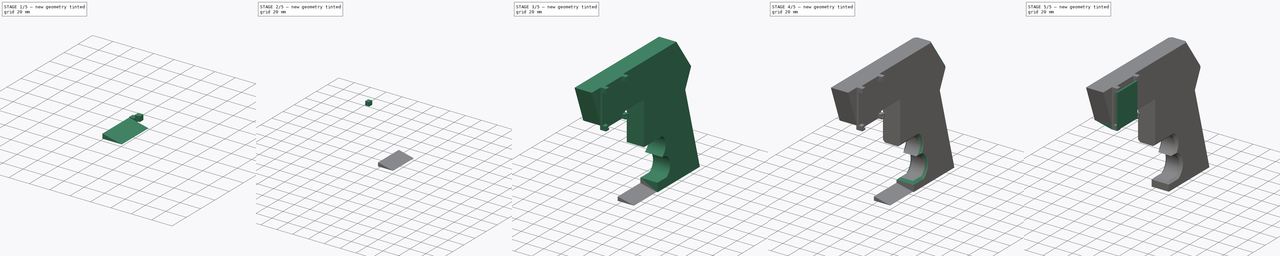
[diagram: build sequence overview — one tinted view per stage of 5, left to right]
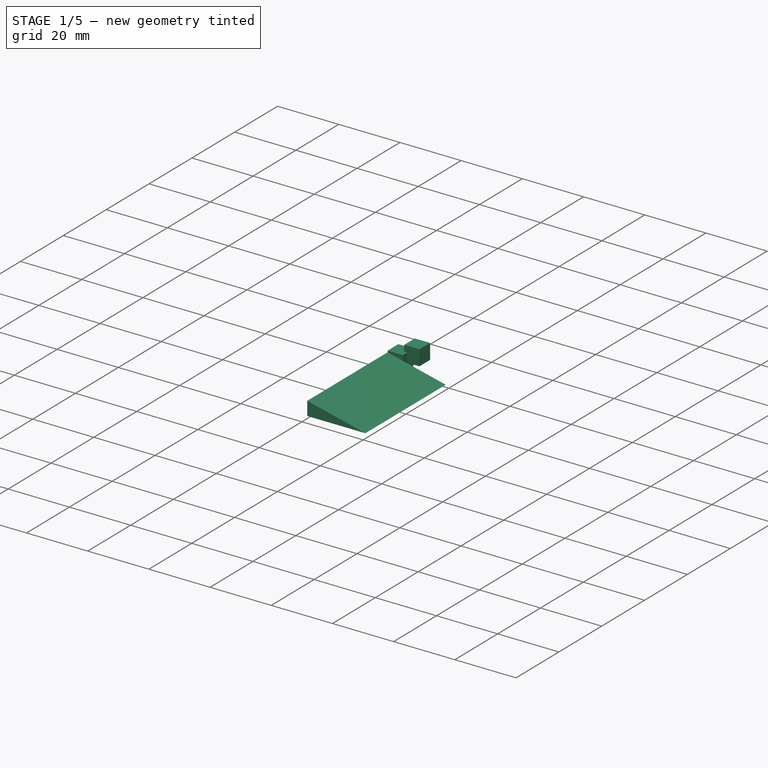
[diagram: stage 1 of 5 — iso view after this stage's code; geometry added in this stage tinted green]
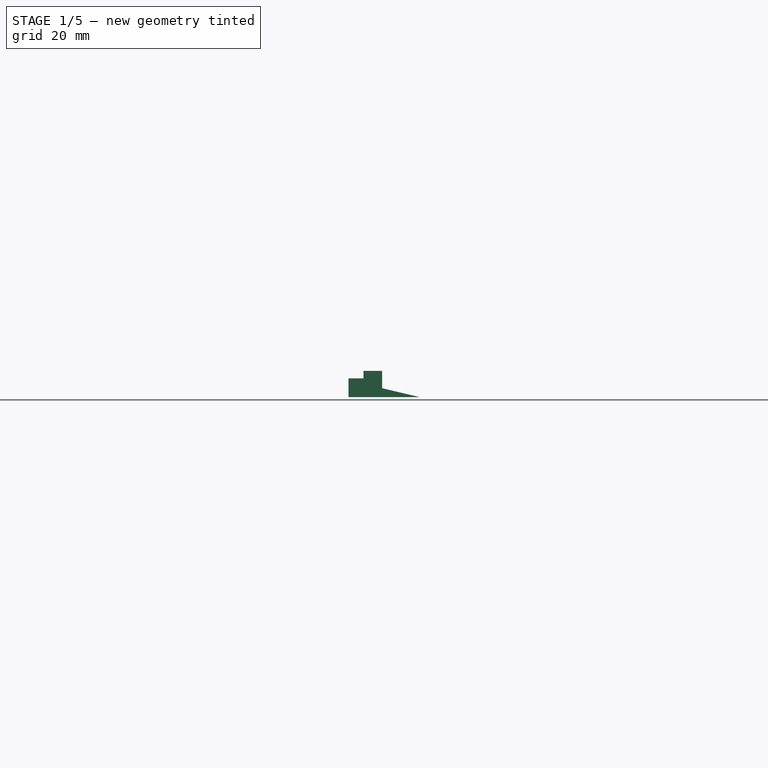
[diagram: stage 1 of 5 — front view after this stage's code; geometry added in this stage tinted green]
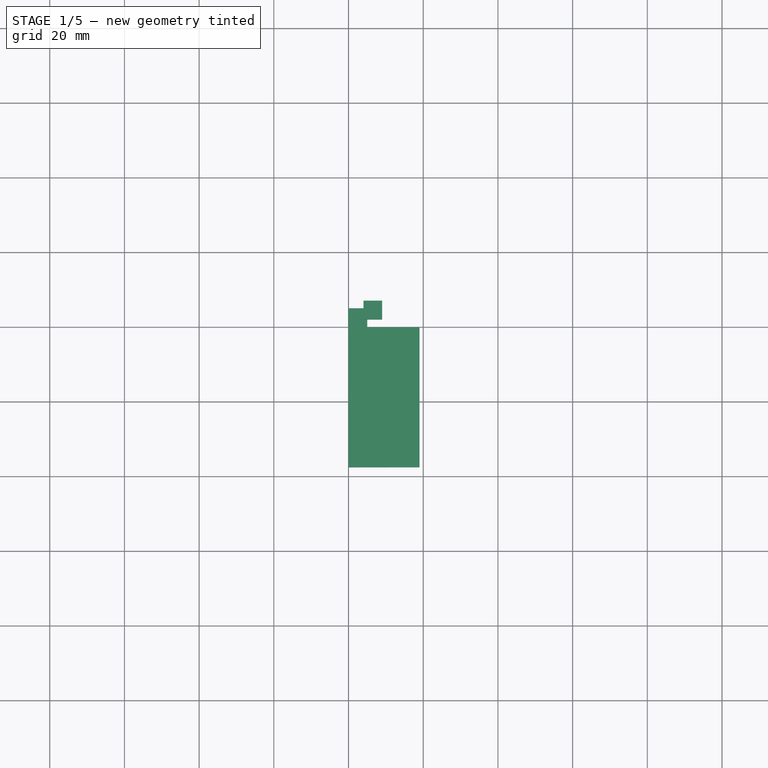
[diagram: stage 1 of 5 — top view after this stage's code; geometry added in this stage tinted green]
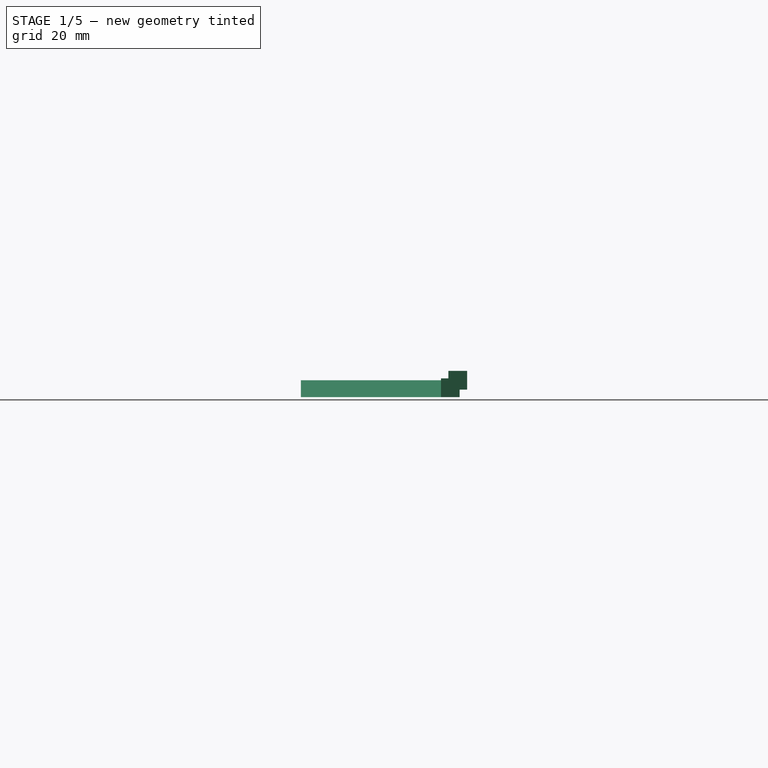
[diagram: stage 1 of 5 — right view after this stage's code; geometry added in this stage tinted green]
FCSTD DOCUMENT  (FreeCAD 0.18.1R)
Label: handle
License: All rights reserved
LicenseURL: http://en.wikipedia.org/wiki/All_rights_reserved
objects: PartDesign::Body×5, Part::Chamfer×4, Part::Box×4, PartDesign::FeatureBase×3, Part::MultiFuse×3, Sketcher::SketchObject×2, PartDesign::Pad×2, Part::Cut×1
note: 26 computed .brp shape members not serialized (recipe doc carries the construction recipe); baked Part::Feature solids carry a one-line shape summary decoded from their .brp

FEATURE [Part::Box] Box002  label="Cube002"
  AttacherType = Attacher::AttachEngine3D
  Height = 5
  Length = 5
  Width = 5
FEATURE [Part::Box] Box003  label="Cube003"
  AttacherType = Attacher::AttachEngine3D
  Height = 5
  Length = 5
  Placement = pos=(4,2,2) rot=(0,0,1;0rad)
  Width = 5
FEATURE [Sketcher::SketchObject] Sketch001
  MapMode = 5
  Placement = pos=(0,0,0) rot=(1,0,0;1.5708rad)
  Support = -> [XZ_Plane004]
  sketch-geometry (3):
    g0: LineSegment StartX=0 StartY=0 StartZ=0 EndX=19 EndY=0 EndZ=0
    g1: LineSegment StartX=0 StartY=0 StartZ=0 EndX=0 EndY=4.5 EndZ=0
    g2: LineSegment StartX=0 StartY=4.5 StartZ=0 EndX=19 EndY=0 EndZ=0
  constraints (8):
    c: Coincident(g0,g1)
    c: Coincident(g1,g2)
    c: Coincident(g2,g0)
    c: Horizontal(g0)
    c: Vertical(g1)
    c: Coincident(g0,g-1)
    c: DistanceX(g0,g0) = 19
    c: DistanceY(g1,g1) = 4.5
FEATURE [PartDesign::Pad] Pad001
  Length = 37.5
  Length2 = 100
  Placement = pos=(0,0,0) rot=(1,0,0;1.5708rad)
  Profile = -> Sketch001
  Type = 0
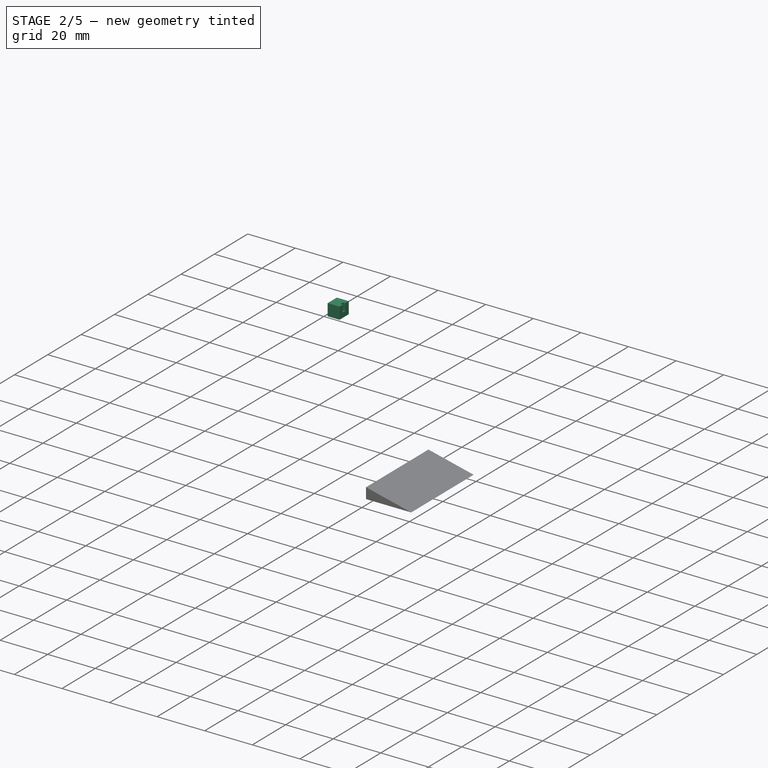
[diagram: stage 2 of 5 — iso view after this stage's code; geometry added in this stage tinted green]
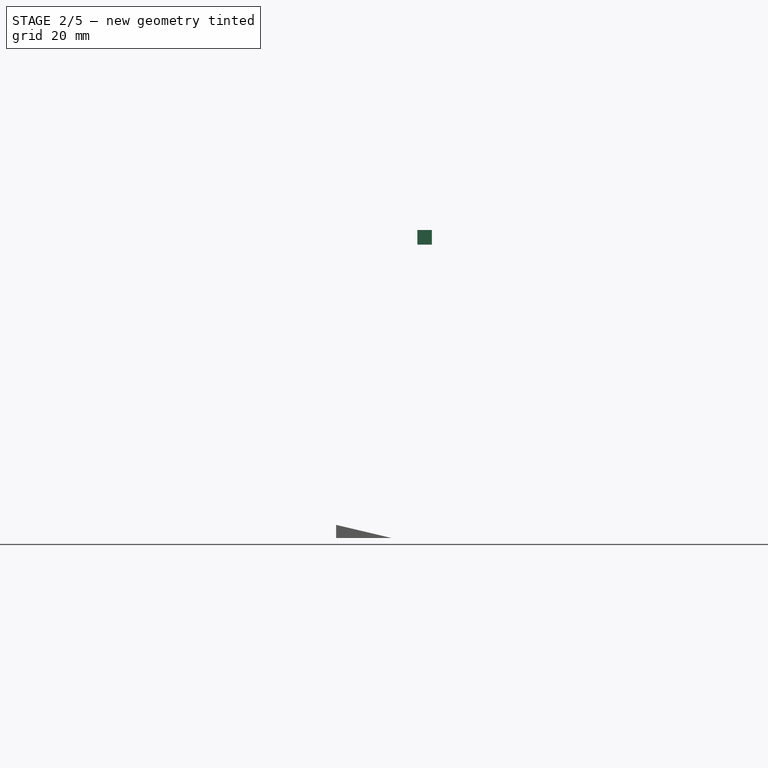
[diagram: stage 2 of 5 — front view after this stage's code; geometry added in this stage tinted green]
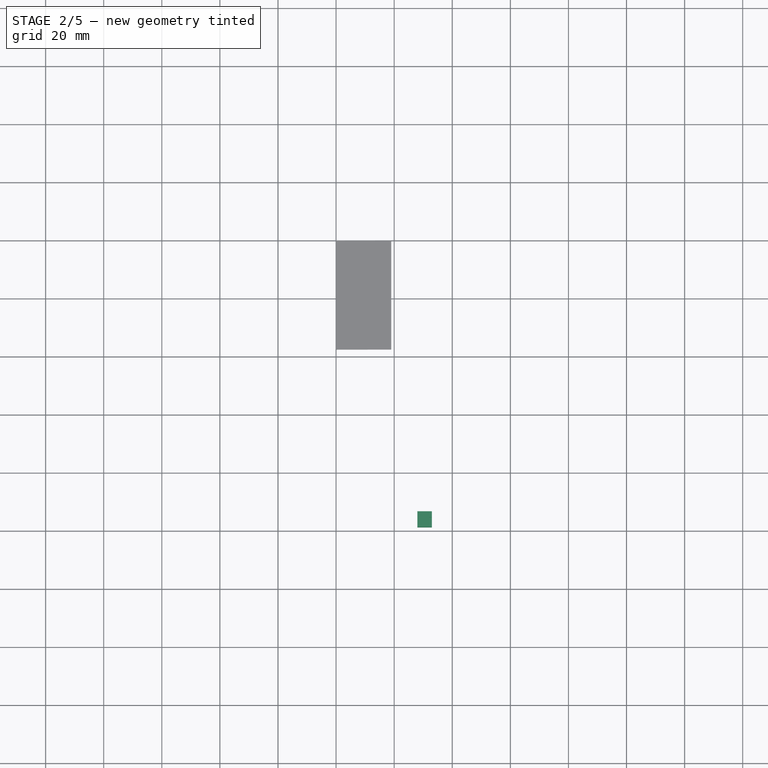
[diagram: stage 2 of 5 — top view after this stage's code; geometry added in this stage tinted green]
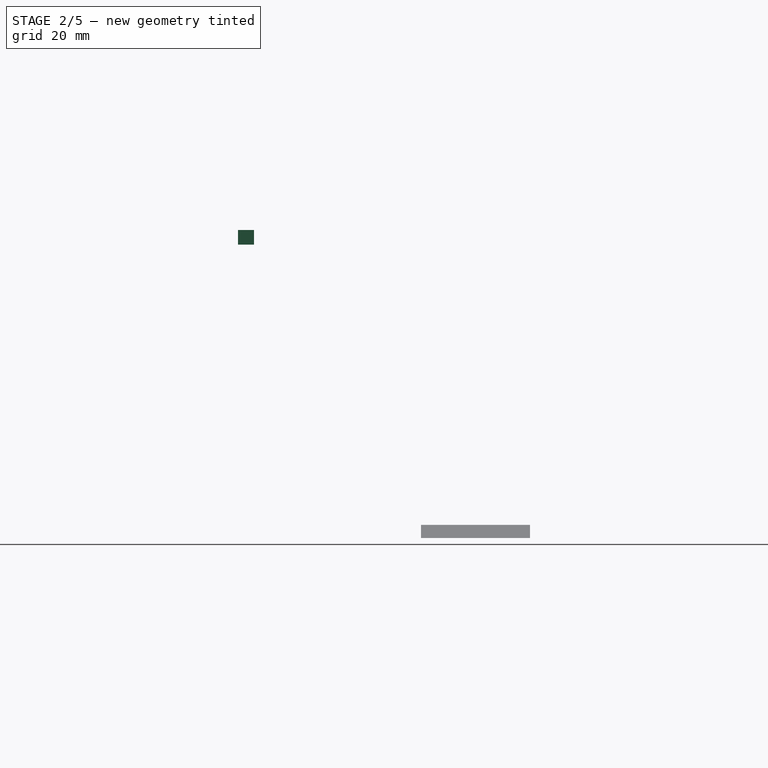
[diagram: stage 2 of 5 — right view after this stage's code; geometry added in this stage tinted green]
FEATURE [Part::Cut] Cut  label="stand"
  Base = -> Box002
  Placement = pos=(28,-100.5,100.5) rot=(0,0,1;0rad)
  Tool = -> Box003
FEATURE [PartDesign::FeatureBase] Clone
  BaseFeature = -> Cut
  Placement = pos=(28,-95,101) rot=(1,0,0;1.5708rad)
FEATURE [PartDesign::Body] Body001
  BaseFeature = -> Cut
  Group = -> [Clone]
  Origin = -> Origin001
  Placement = pos=(0,32,-0.5) rot=(0,0,1;0rad)
  Tip = -> Clone
FEATURE [PartDesign::FeatureBase] Clone001
  BaseFeature = -> Cut
  Placement = pos=(28,-100.5,101) rot=(0,0,1;0rad)
FEATURE [PartDesign::Body] Body002
  BaseFeature = -> Cut
  Group = -> [Clone001]
  Origin = -> Origin002
  Placement = pos=(0,-201.5,44.5) rot=(-1,0,0;1.5708rad)
  Tip = -> Clone001
FEATURE [PartDesign::FeatureBase] Clone002
  BaseFeature = -> Cut
  Placement = pos=(28,-100.5,101) rot=(0,0,1;0rad)
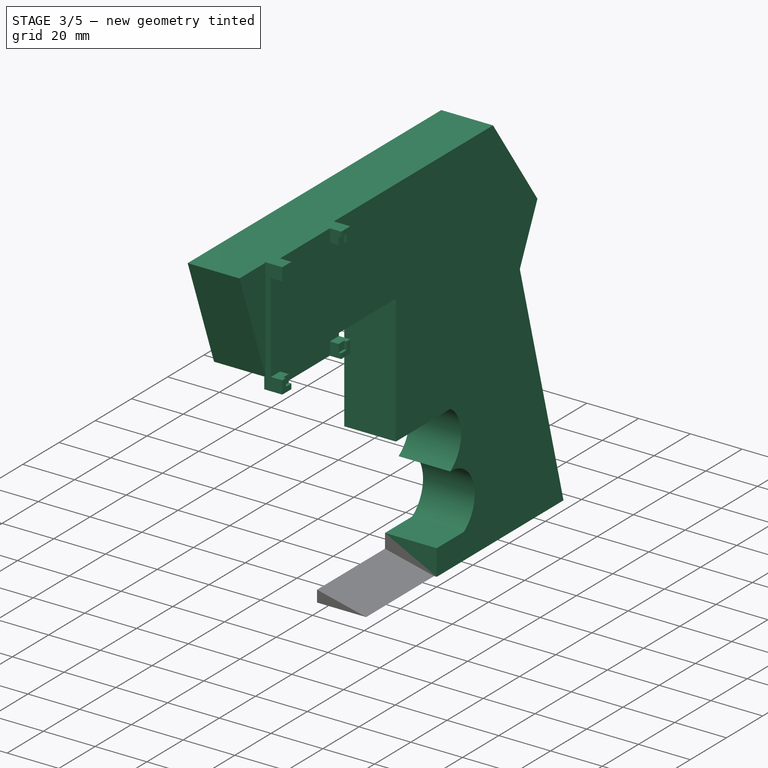
[diagram: stage 3 of 5 — iso view after this stage's code; geometry added in this stage tinted green]
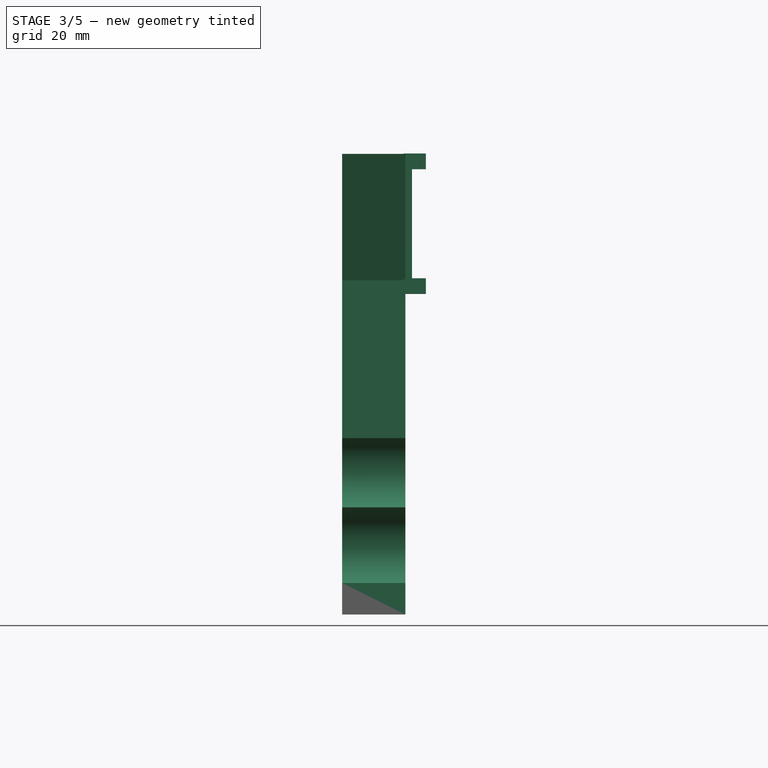
[diagram: stage 3 of 5 — front view after this stage's code; geometry added in this stage tinted green]
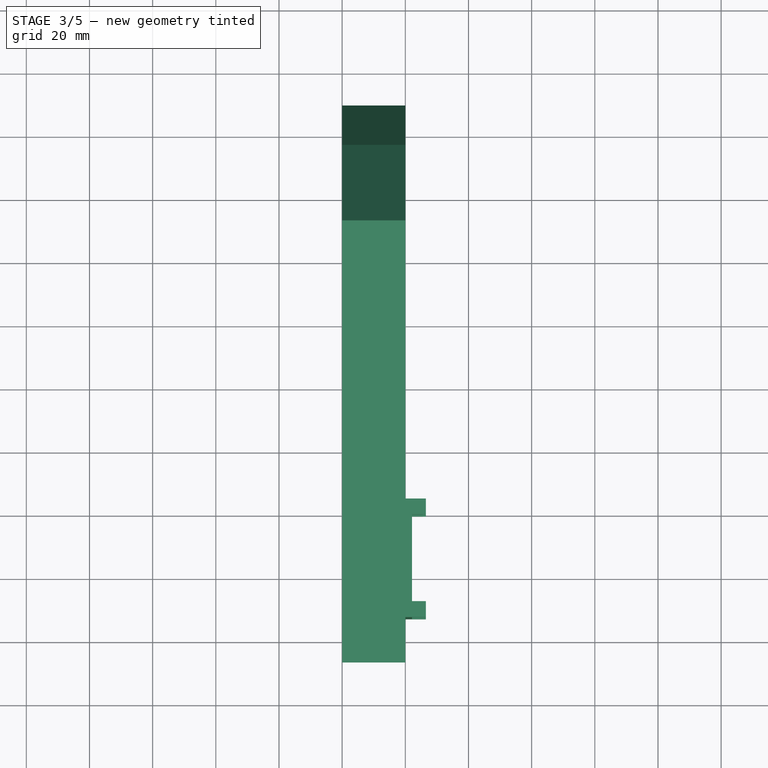
[diagram: stage 3 of 5 — top view after this stage's code; geometry added in this stage tinted green]
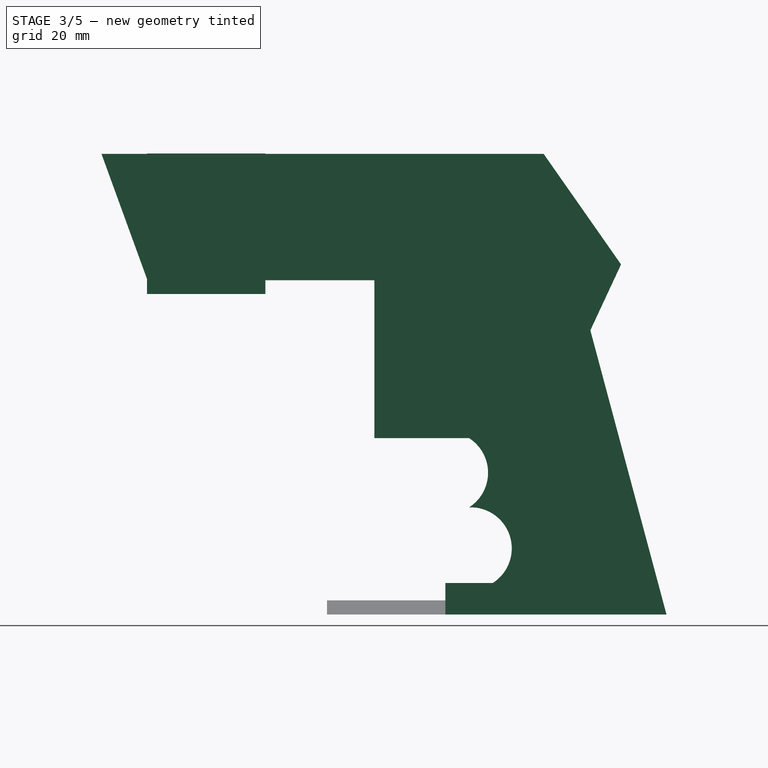
[diagram: stage 3 of 5 — right view after this stage's code; geometry added in this stage tinted green]
FEATURE [Sketcher::SketchObject] Sketch
  MapMode = 5
  Placement = pos=(0,0,0) rot=(0.57735,0.57735,0.57735;2.0944rad)
  Support = -> [YZ_Plane]
  sketch-geometry (13):
    g0: LineSegment StartX=0 StartY=0 StartZ=0 EndX=70 EndY=0 EndZ=0
    g1: LineSegment StartX=70 StartY=0 StartZ=0 EndX=45.8846 EndY=90 EndZ=0
    g2: LineSegment StartX=45.8846 StartY=90 StartZ=0 EndX=55.6088 EndY=110.854 EndZ=0
    g3: LineSegment StartX=55.6088 StartY=110.854 StartZ=0 EndX=31.1016 EndY=145.854 EndZ=0
    g4: LineSegment StartX=31.1016 StartY=145.854 StartZ=0 EndX=-108.898 EndY=145.854 EndZ=0
    g5: LineSegment StartX=-108.898 StartY=145.854 StartZ=0 EndX=-94.3396 EndY=105.854 EndZ=0
    g6: LineSegment StartX=-94.3396 StartY=105.854 StartZ=0 EndX=-22.5 EndY=105.854 EndZ=0
    g7: LineSegment StartX=-22.5 StartY=105.854 StartZ=0 EndX=-22.5 EndY=55.8537 EndZ=0
    g8: LineSegment StartX=-22.5 StartY=55.8537 StartZ=0 EndX=7.5 EndY=55.8537 EndZ=0
    g9: LineSegment StartX=0 StartY=0 StartZ=0 EndX=0 EndY=10 EndZ=0
    g10: LineSegment StartX=0 StartY=10 StartZ=0 EndX=15 EndY=10 EndZ=0
    g11: ArcOfCircle CenterX=8 CenterY=20.9545 CenterZ=0 NormalX=0 NormalY=0 NormalZ=1 AngleXU=0 Radius=13 StartAngle=5.281 EndAngle=7.89245
    g12: ArcOfCircle CenterX=0.5 CenterY=44.8993 CenterZ=0 NormalX=0 NormalY=0 NormalZ=1 AngleXU=0 Radius=13 StartAngle=5.281 EndAngle=7.28537
  constraints (40):
    c: Coincident(g9,g0)
    c: Coincident(g9,g10)
    c: Coincident(g0,g1)
    c: Coincident(g1,g2)
    c: Coincident(g3,g2)
    c: Coincident(g3,g4)
    c: Coincident(g5,g4)
    c: Coincident(g5,g6)
    c: Coincident(g6,g7)
    c: Coincident(g7,g8)
    c: Coincident(g10,g11)
    c: Coincident(g11,g12)
    c: Horizontal(g0)
    c: Horizontal(g4)
    c: Vertical(g7)
    c: Horizontal(g6)
    c: Horizontal(g10)
    c: Vertical(g9)
    c: Radius(g11) = 13
    c: Radius(g12) = 13
    c: Horizontal(g8)
    c: Coincident(g8,g12)
    c: Angle(g1,g2) = 2.44346
    c: DistanceY(g3,g3) = 35
    c: DistanceY(g7,g7) = 50
    c: Angle(g6,g5) = 1.91986
    c: DistanceX(g8,g8) = 30
    c: DistanceX(g0,g0) = 70
    c: DistanceY(g9,g9) = 10
    c: DistanceX(g10,g10) = 15
    c: Distance(g1,g0) = 90
    c: DistanceY(g5,g4) = 40
    c: DistanceX(g4,g4) = 140
    c: DistanceX(g11,g10) = 7
    c: DistanceX(g12,g11) = 7
    c: Coincident(g-1,g0)
    c: DistanceX(g11,g11) = 0.5
    c: Angle(g1,g0) = 1.309
    c: DistanceX(g12,g8) = 7
    c: Angle(g3,g2) = 2.0944
FEATURE [PartDesign::Pad] Pad
  Length = 20
  Length2 = 100
  Placement = pos=(0,0,0) rot=(0.57735,0.57735,0.57735;2.0944rad)
  Profile = -> Sketch
  Type = 0
FEATURE [Part::Box] Box001  label="Cube001"
  AttacherType = Attacher::AttachEngine3D
  Height = 44.5
  Length = 2.6
  Placement = pos=(26,-100.5,100.5) rot=(0,0,1;0rad)
  Width = 37.5
FEATURE [PartDesign::Body] Body003
  BaseFeature = -> Cut
  Group = -> [Clone002]
  Origin = -> Origin003
  Placement = pos=(0,-163.5,246) rot=(1,0,0;3.14159rad)
  Tip = -> Clone002
FEATURE [Part::MultiFuse] Fusion
  Placement = pos=(-6.5,6,1) rot=(0,0,1;0rad)
  Shapes = -> [Box001,Cut,Body001,Body002,Body003]
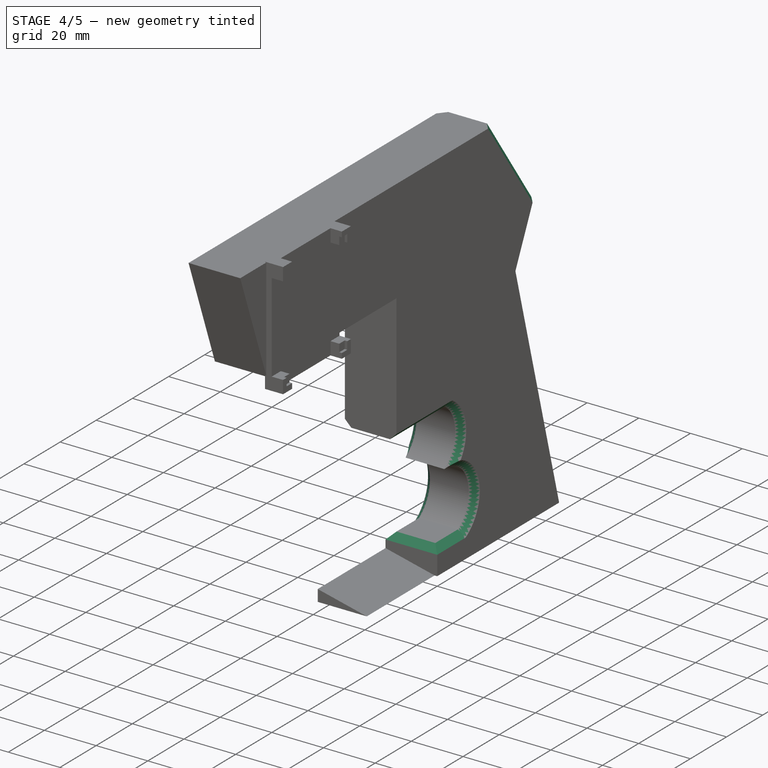
[diagram: stage 4 of 5 — iso view after this stage's code; geometry added in this stage tinted green]
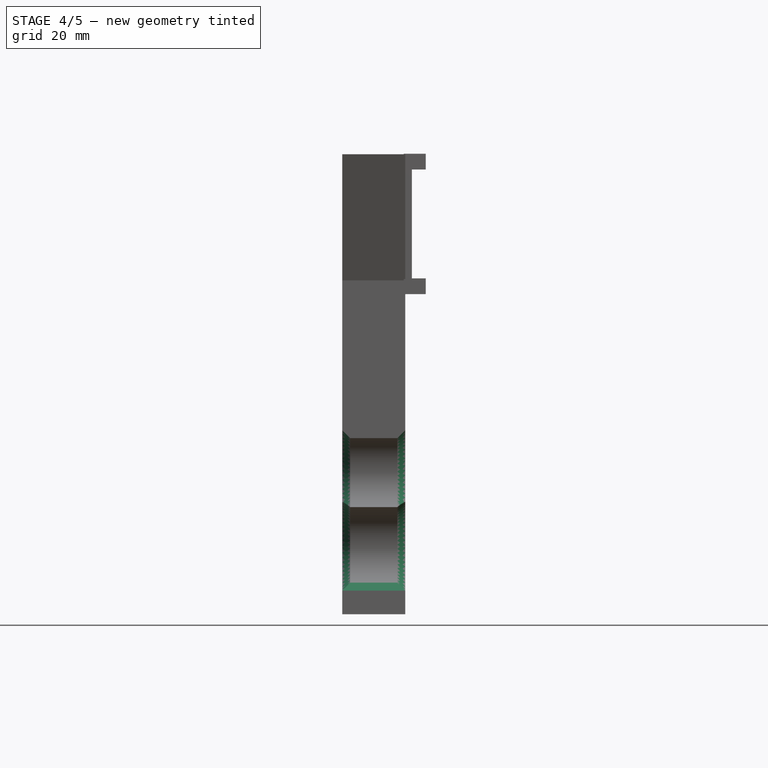
[diagram: stage 4 of 5 — front view after this stage's code; geometry added in this stage tinted green]
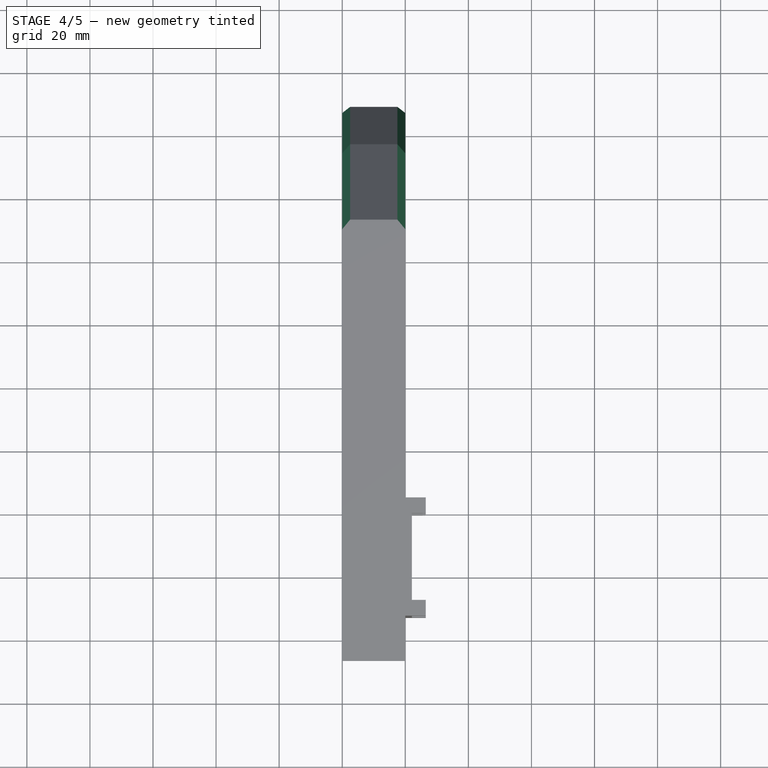
[diagram: stage 4 of 5 — top view after this stage's code; geometry added in this stage tinted green]
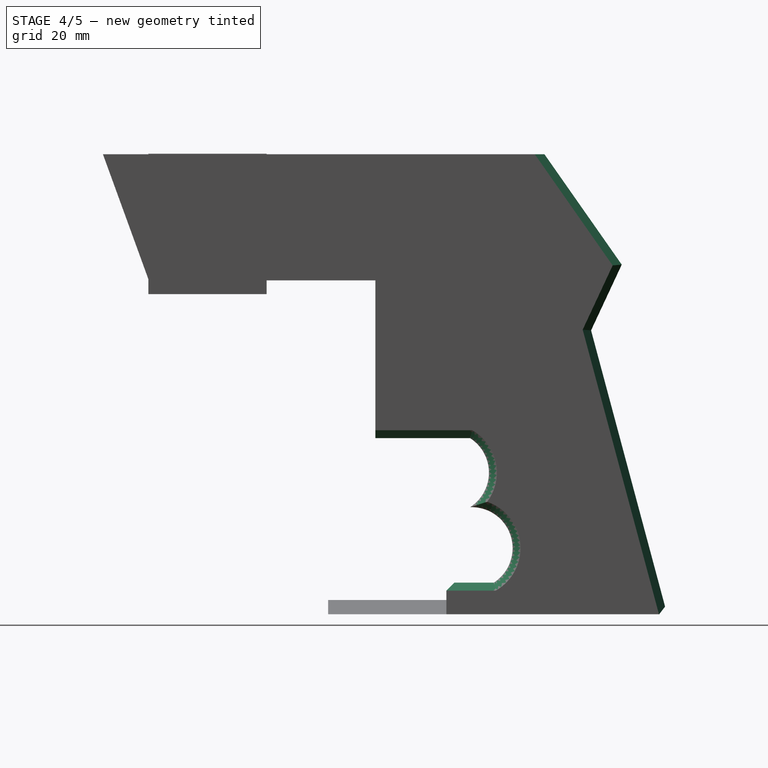
[diagram: stage 4 of 5 — right view after this stage's code; geometry added in this stage tinted green]
FEATURE [PartDesign::Body] Body
  Group = -> [Sketch,Pad]
  Origin = -> Origin
  Tip = -> Pad
FEATURE [Part::Chamfer] Chamfer
  Base = -> Pad
  Edges = 4 edges r=2.5: [Edge30,Edge31,Edge33,Edge34]
FEATURE [Part::Chamfer] Chamfer001
  Base = -> Chamfer
  Edges = 2 edges r=2.5: [Edge6,Edge7]
FEATURE [Part::Chamfer] Chamfer002
  Base = -> Chamfer001
  Edges = 3 edges r=2.5: [Edge28,Edge42,Edge61]
FEATURE [Part::Chamfer] Chamfer003
  Base = -> Chamfer002
  Edges = 7 edges r=2.5: [Edge5,Edge7,Edge9,Edge24,Edge29,Edge33,Edge35]
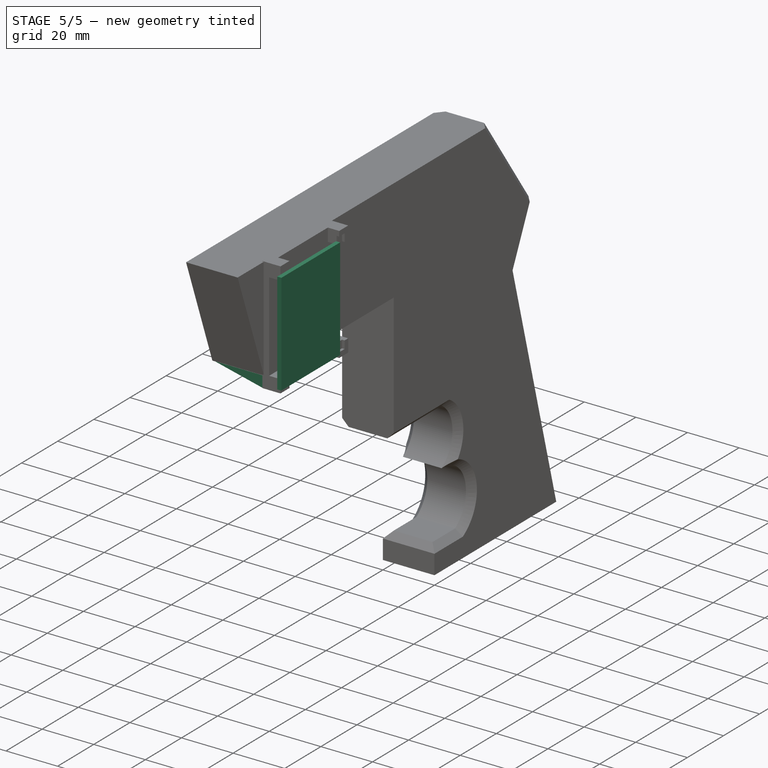
[diagram: stage 5 of 5 — iso view after this stage's code; geometry added in this stage tinted green]
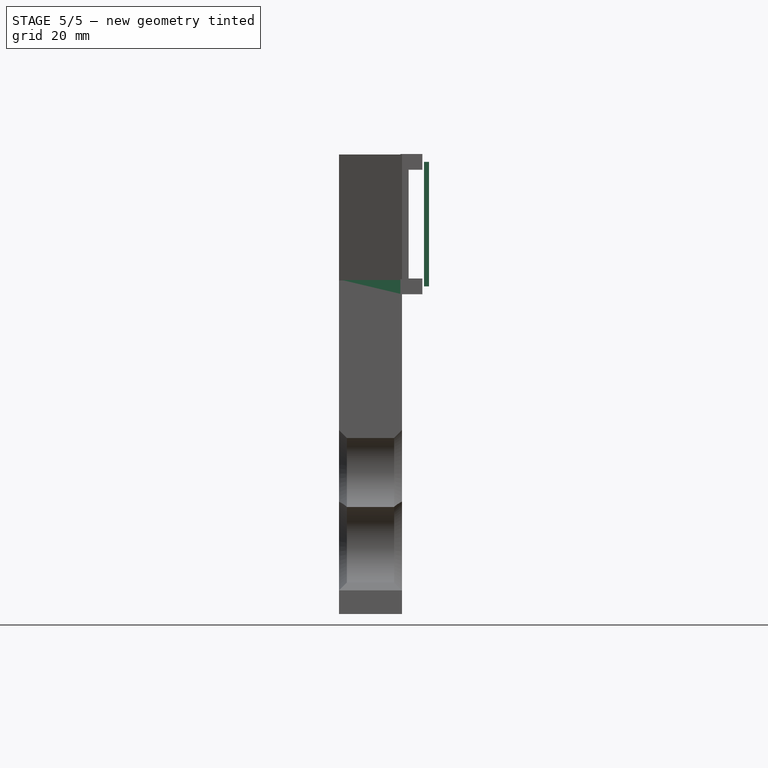
[diagram: stage 5 of 5 — front view after this stage's code; geometry added in this stage tinted green]
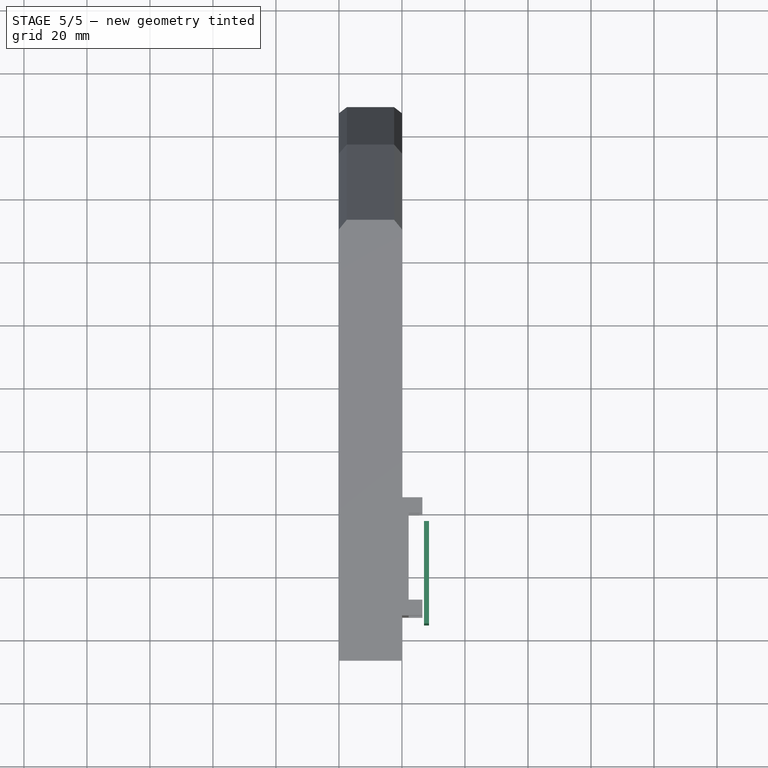
[diagram: stage 5 of 5 — top view after this stage's code; geometry added in this stage tinted green]
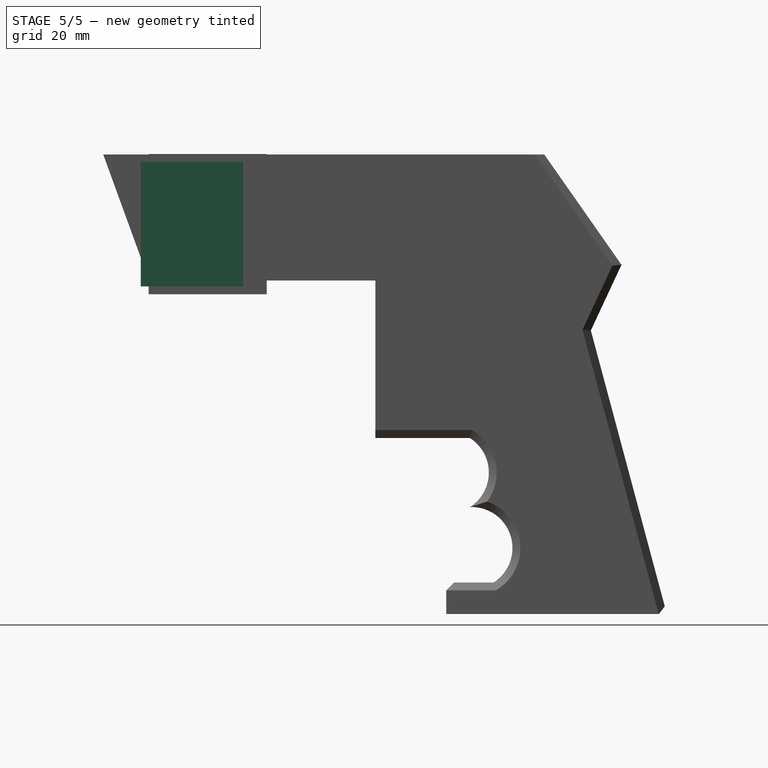
[diagram: stage 5 of 5 — right view after this stage's code; geometry added in this stage tinted green]
FEATURE [Part::Box] Box  label="Cube"
  AttacherType = Attacher::AttachEngine3D
  Height = 39.5
  Length = 1.6
  Placement = pos=(27,-97,104) rot=(0,0,1;0rad)
  Width = 32.5
FEATURE [Part::MultiFuse] Fusion001
  Shapes = -> [Chamfer003,Fusion]
FEATURE [PartDesign::Body] Body004
  Group = -> [Sketch001,Pad001]
  Origin = -> Origin004
  Placement = pos=(20,-57,106) rot=(0,1,0;3.14159rad)
  Tip = -> Pad001
FEATURE [Part::MultiFuse] Fusion002
  Shapes = -> [Fusion001,Body004]
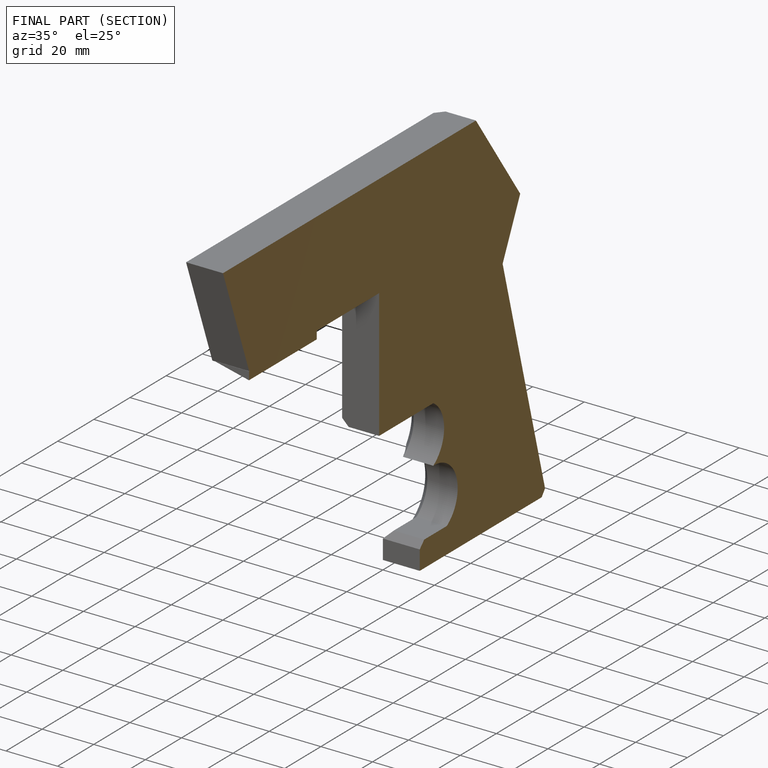
[diagram: finished part — half-section view (interior)]
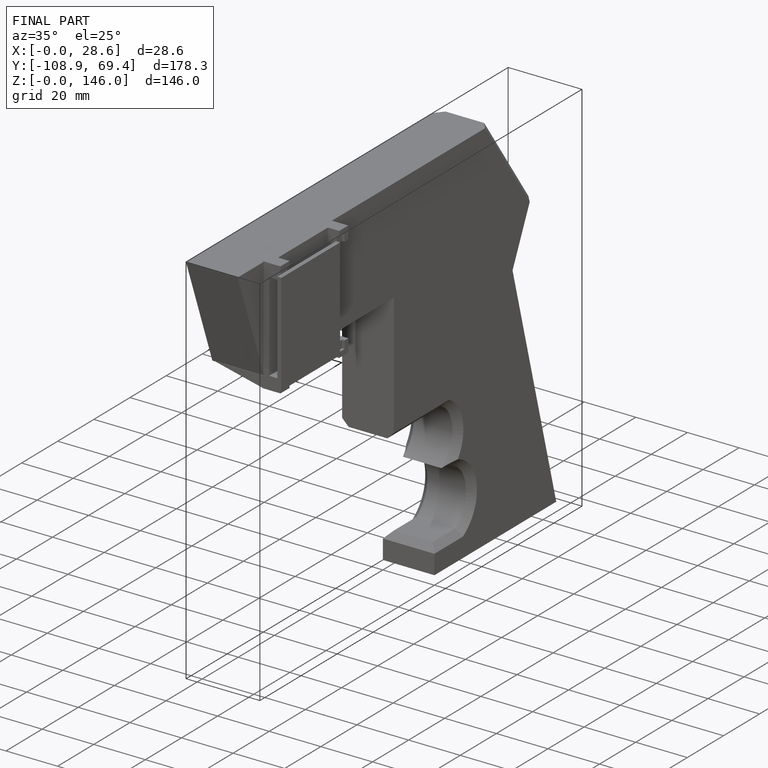
[diagram: finished part — iso view with bounding-box wireframe]
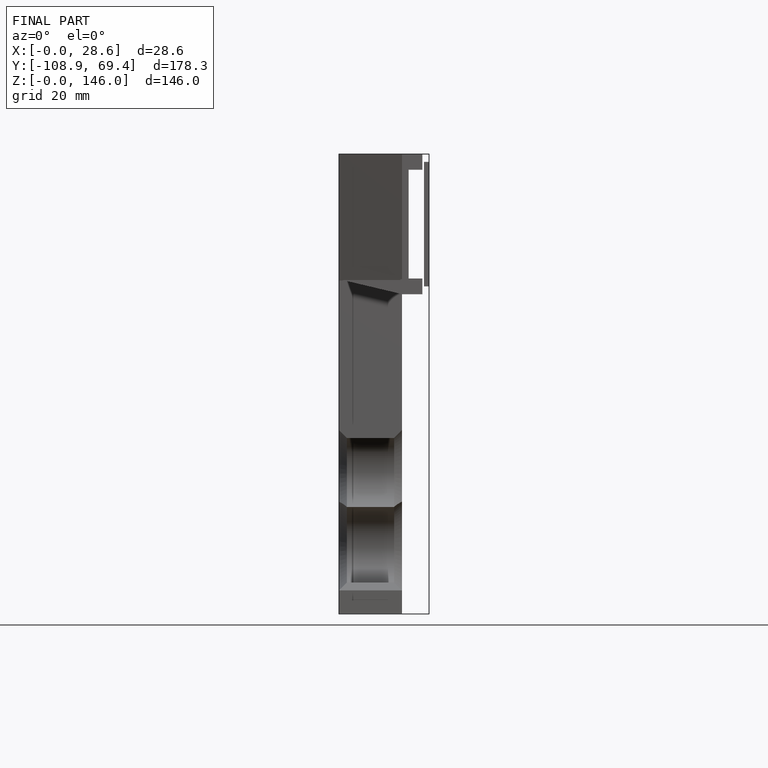
[diagram: finished part — front view with bounding-box wireframe]
